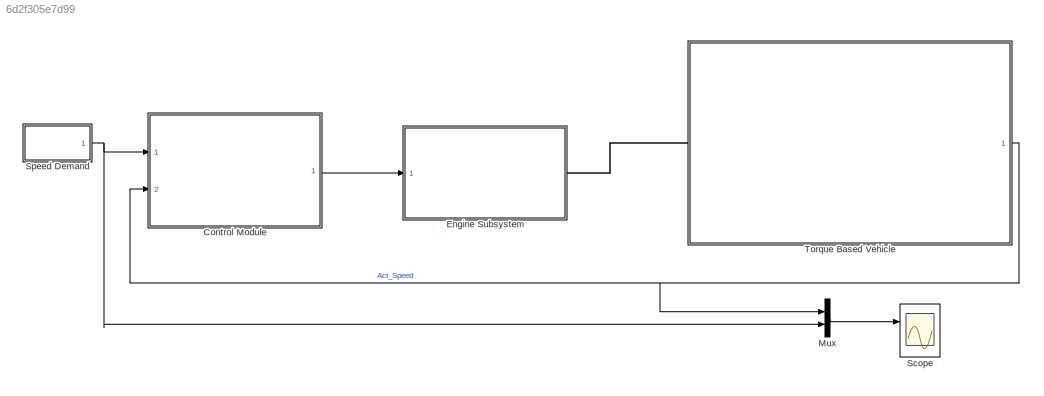
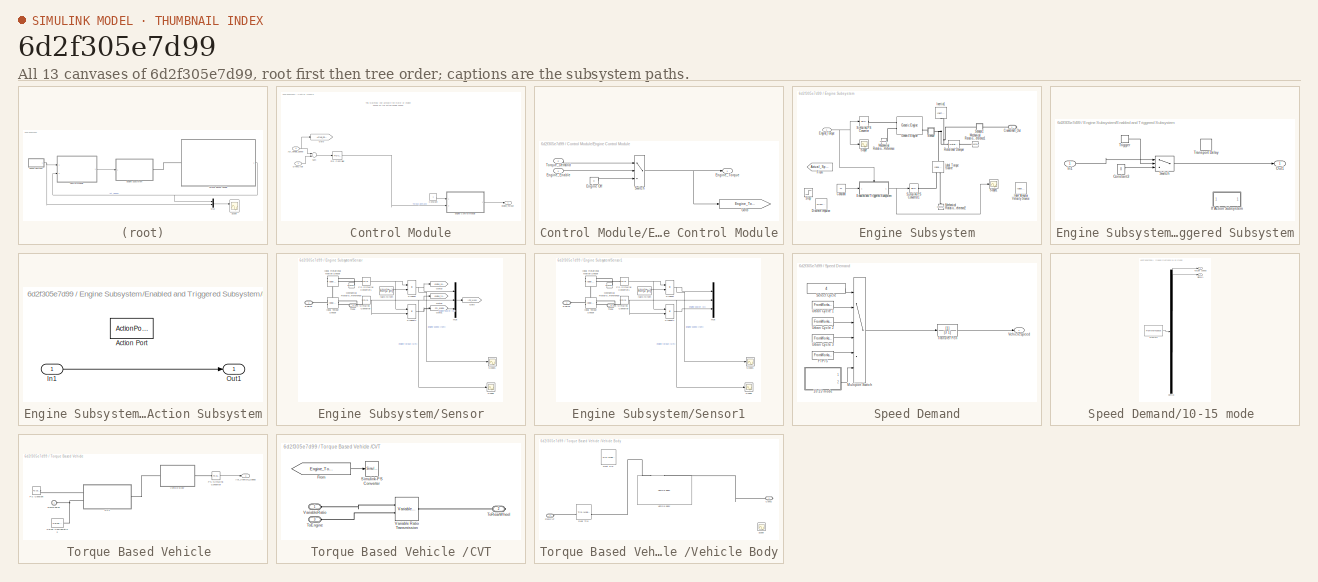
[diagram: thumbnail index - all 13 canvases of the model, root first then tree order]
MODEL slx_6d2f305e7d99
KIND model
BLOCK [SubSystem] Control Module
  FunctionWithSeparateData = off
  MaskHideContents = off
  MinAlgLoopOccurrences = off
  Opaque = off
  Ports = [2, 1]
  PropExecContextOutsideSubsystem = off
  RTWSystemCode = Auto
  RequestExecContextInheritance = off
BLOCK [Inport] Control Module/Act_Vehicle_Speed
  IconDisplay = Port number
  Port = 2
BLOCK [Constant] Control Module/Constant
BLOCK [Inport] Control Module/DriveCycle
  IconDisplay = Port number
BLOCK [SubSystem] Control Module/Engine Control Module
  FunctionWithSeparateData = off
  MaskHideContents = off
  MinAlgLoopOccurrences = off
  Opaque = off
  Ports = [2, 1]
  PropExecContextOutsideSubsystem = off
  RTWSystemCode = Auto
  RequestExecContextInheritance = off
BLOCK [Constant] Control Module/Engine Control Module/Engine Off
  Value = 0
BLOCK [Inport] Control Module/Engine Control Module/Engine_Enable
  IconDisplay = Port number
BLOCK [Outport] Control Module/Engine Control Module/Engine_Torque
  IconDisplay = Port number
BLOCK [Goto] Control Module/Engine Control Module/Goto
  GotoTag = Engine_Torque_Demand
  TagVisibility = global
BLOCK [Switch] Control Module/Engine Control Module/Switch
  InputSameDT = off
  SaturateOnIntegerOverflow = off
  Threshold = 0.5
BLOCK [Inport] Control Module/Engine Control Module/Torque_Demand
  IconDisplay = Port number
  Port = 2
BLOCK [Outport] Control Module/Engine_Torque
  IconDisplay = Port number
BLOCK [Goto] Control Module/Goto
  GotoTag = Actual_Speed
  TagVisibility = global
BLOCK [Reference] Control Module/PID Controller  REF=simulink/Continuous/PID Controller
  AntiWindupMode = none
  Controller = P
  D = 0
  DOutDataTypeStr = Inherit: Inherit via internal rule
  DOutMax = []
  DOutMin = []
  DParamDataTypeStr = Inherit: Inherit via internal rule
  DParamMax = []
  DParamMin = []
  ExternalReset = none
  FilterContinuousStateAttributes = ''
  FilterMethod = Forward Euler
  FilterOutDataTypeStr = Inherit: Inherit via internal rule
  FilterOutMax = []
  FilterOutMin = []
  FilterRTWStateStorageClass = Auto
  FilterStateMustResolveToSignalObject = off
  Form = Parallel
  I = 0
  IOutDataTypeStr = Inherit: Inherit via internal rule
  IOutMax = []
  IOutMin = []
  IParamDataTypeStr = Inherit: Inherit via internal rule
  IParamMax = []
  IParamMin = []
  IgnoreLimit = off
  InitialConditionForFilter = 0
  InitialConditionForIntegrator = 0
  InitialConditionSource = internal
  IntegratorContinuousStateAttributes = ''
  IntegratorMethod = Forward Euler
  IntegratorOutDataTypeStr = Inherit: Inherit via internal rule
  IntegratorOutMax = []
  IntegratorOutMin = []
  IntegratorRTWStateStorageClass = Auto
  IntegratorStateMustResolveToSignalObject = off
  Kb = 1
  KbOutDataTypeStr = Inherit: Inherit via internal rule
  KbOutMax = []
  KbOutMin = []
  KbParamDataTypeStr = Inherit: Inherit via internal rule
  KbParamMax = []
  KbParamMin = []
  Kt = 1
  KtOutDataTypeStr = Inherit: Inherit via internal rule
  KtOutMax = []
  KtOutMin = []
  KtParamDataTypeStr = Inherit: Inherit via internal rule
  KtParamMax = []
  KtParamMin = []
  LimitOutput = off
  LinearizeAsGain = on
  LockScale = off
  LowerSaturationLimit = -inf
  N = 0
  NOutDataTypeStr = Inherit: Inherit via internal rule
  NOutMax = []
  NOutMin = []
  NParamDataTypeStr = Inherit: Inherit via internal rule
  NParamMax = []
  NParamMin = []
  P = 100
  POutDataTypeStr = Inherit: Inherit via internal rule
  POutMax = []
  POutMin = []
  PParamDataTypeStr = Inherit: Inherit via internal rule
  PParamMax = []
  PParamMin = []
  Ports = [1, 1]
  RndMeth = Floor
  SampleTime = 1
  SaturateOnIntegerOverflow = off
  SaturationOutDataTypeStr = Inherit: Same as input
  SaturationOutMax = []
  SaturationOutMin = []
  SourceBlock = simulink/Continuous/PID Controller
  SourceType = PID 1dof
  SumAccumDataTypeStr = Inherit: Inherit via internal rule
  SumDAccumDataTypeStr = Inherit: Inherit via internal rule
  SumDOutDataTypeStr = Inherit: Inherit via internal rule
  SumDOutMax = []
  SumDOutMin = []
  SumI1AccumDataTypeStr = Inherit: Inherit via internal rule
  SumI1OutDataTypeStr = Inherit: Inherit via internal rule
  SumI1OutMax = []
  SumI1OutMin = []
  SumI2AccumDataTypeStr = Inherit: Inherit via internal rule
  SumI2OutDataTypeStr = Inherit: Inherit via internal rule
  SumI2OutMax = []
  SumI2OutMin = []
  SumI3AccumDataTypeStr = Inherit: Inherit via internal rule
  SumI3OutDataTypeStr = Inherit: Inherit via internal rule
  SumI3OutMax = []
  SumI3OutMin = []
  SumOutDataTypeStr = Inherit: Inherit via internal rule
  SumOutMax = []
  SumOutMin = []
  TimeDomain = Continuous-time
  TrackingMode = off
  UpperSaturationLimit = inf
  ZeroCross = on
BLOCK [Sum] Control Module/Sum
  InputSameDT = off
  Inputs = -+
  OutDataTypeStr = Inherit: Inherit via internal rule
  Ports = [2, 1]
  SaturateOnIntegerOverflow = off
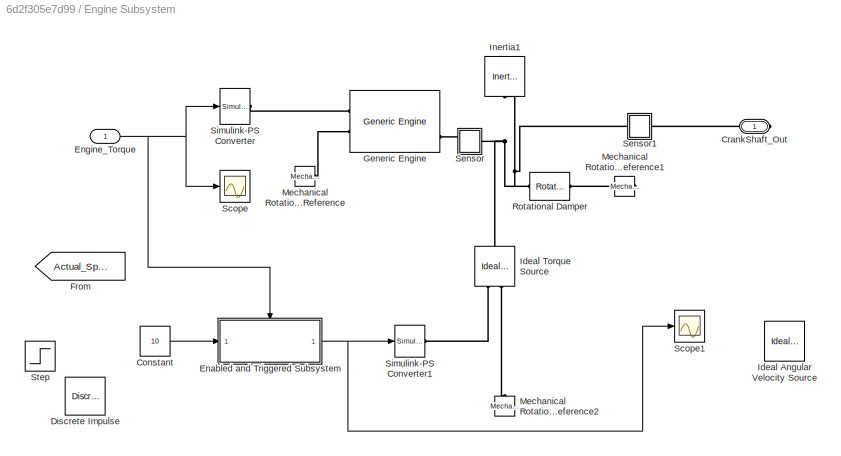
BLOCK [SubSystem] Engine Subsystem
  FunctionWithSeparateData = off
  MaskHideContents = off
  MinAlgLoopOccurrences = off
  Opaque = off
  Ports = [1, 0, 0, 0, 0, 0, 1]
  PropExecContextOutsideSubsystem = off
  RTWSystemCode = Auto
  RequestExecContextInheritance = off
BLOCK [Constant] Engine Subsystem/Constant
  Value = 10
BLOCK [PMIOPort] Engine Subsystem/CrankShaft_Out
  Port = 1
  Side = Right
BLOCK [Reference] Engine Subsystem/Discrete Impulse  REF=dspsrcs4/Discrete 
Impulse
  Delay = 0
  FrameSample = 1
  LastOutDataTypeStr = double
  OutDataTypeStr = double
  Ports = [0, 1]
  SampleTime = 1
  SourceBlock = dspsrcs4/Discrete \nImpulse
  SourceType = Discrete Impulse
  additionalParams = off
  allowOverrides = on
  dataType = double
  fracBitsMode = Best precision
  isSigned = on
  numFracBits = 15
  udDataType = sfix(16)
  wordLen = 16
BLOCK [SubSystem] Engine Subsystem/Enabled and Triggered Subsystem
  FunctionWithSeparateData = off
  MaskHideContents = off
  MinAlgLoopOccurrences = off
  Opaque = off
  Ports = [1, 1, 0, 1]
  PropExecContextOutsideSubsystem = off
  RTWSystemCode = Auto
  RequestExecContextInheritance = off
  TreatAsAtomicUnit = on
BLOCK [Constant] Engine Subsystem/Enabled and Triggered Subsystem/Constant3
  SampleTime = -1
  Value = 0
BLOCK [SubSystem] Engine Subsystem/Enabled and Triggered Subsystem/If Action Subsystem
  FunctionWithSeparateData = off
  MaskHideContents = off
  MinAlgLoopOccurrences = off
  Opaque = off
  Ports = [1, 1, 0, 0, 0, 0, 0, 1]
  PropExecContextOutsideSubsystem = off
  RTWSystemCode = Auto
  RequestExecContextInheritance = off
  TreatAsAtomicUnit = on
BLOCK [ActionPort] Engine Subsystem/Enabled and Triggered Subsystem/If Action Subsystem/Action Port
BLOCK [Inport] Engine Subsystem/Enabled and Triggered Subsystem/If Action Subsystem/In1
  IconDisplay = Port number
BLOCK [Outport] Engine Subsystem/Enabled and Triggered Subsystem/If Action Subsystem/Out1
  IconDisplay = Port number
BLOCK [Inport] Engine Subsystem/Enabled and Triggered Subsystem/In1
  IconDisplay = Port number
BLOCK [Outport] Engine Subsystem/Enabled and Triggered Subsystem/Out1
  IconDisplay = Port number
  InitialOutput = 0
BLOCK [Switch] Engine Subsystem/Enabled and Triggered Subsystem/Switch
  InputSameDT = off
  SaturateOnIntegerOverflow = off
BLOCK [TransportDelay] Engine Subsystem/Enabled and Triggered Subsystem/Transport Delay
  Commented = on
  DelayTime = 0.5
  Ports = [1, 1]
BLOCK [TriggerPort] Engine Subsystem/Enabled and Triggered Subsystem/Trigger
  PortDimensions = 1
  Ports = [0, 1]
  ShowOutputPort = on
  StatesWhenEnabling = reset
  TriggerType = either
BLOCK [Inport] Engine Subsystem/Engine_Torque
  IconDisplay = Port number
BLOCK [From] Engine Subsystem/From
  Commented = on
  GotoTag = Actual_Speed
  TagVisibility = global
BLOCK [Reference] Engine Subsystem/Generic Engine  REF=sdl_lib/Engines/Generic Engine
  ClassName = generic_engine
  ComponentPath = sdl.engines.generic_engine
  ComponentVariantNames = generic_engine
  ComponentVariants = sdl.engines.generic_engine
  LocalVarLogging = []
  P_max = 8300
  P_max_unit = W
  Ports = [0, 0, 0, 0, 0, 2, 3]
  SchemaVersion = 1
  SourceBlock = sdl_lib/Engines/Generic Engine
  SourceFile = sdl.engines.generic_engine
  SourceType = Generic Engine
  T0 = 0
  T0_unit = 1
  bmep_tab = [ 0 250 500 625 750 1000 1.15e+3 1.25e+3 ]
  bmep_tab_unit = kPa
  bsfc_tab = [ 410 380 300 280 270 290 320 380; 410 370 290 270 260 270 285 320; 415 380 290 275 265 270 270 300; 420 390 310 290 285 280 280 285; 430 410 340 320 310 300 310 320; 450 430 370 340 330 330 350 380 ]
  bsfc_tab_unit = g/hr/kW
  displaced_volume = 400
  displaced_volume_unit = cm^3
  engine_type = 1
  engine_type_unit = 1
  fc_interp_method = 1
  fc_interp_method_unit = 1
  fc_model = 1
  fc_model_unit = 1
  fc_per_rev = 25
  fc_per_rev_unit = mg/rev
  fc_tab = [ 0.5 0.9 1.4 1.6 1.9 2.7 3.4 4.4; 1 1.7 2.7 3.1 3.6 5 6 7.4; 1.4 2.7 4 4.8 5.6 7.5 8.5 10.5; 2 3.6 5.8 6.7 8 10.4 11.7 13.3; 2.5 4.8 7.9 9.4 10.8 14 16.2 18.6; 3.1 6 10.3 11.9 13.8 18.4 22 26.5 ]
  fc_tab_unit = g/s
  fc_trq_tab = [ 0 80 160 200 240 320 360 400 ]
  fc_trq_tab_unit = N*m
  fc_w_tab = [ 1000 2e+3 3e+3 4e+3 5e+3 6e+3 ]
  fc_w_tab_unit = rpm
  idle_speed = 0
  idle_speed_reference = 800
  idle_speed_reference_unit = rpm
  idle_speed_unit = 1
  idle_w_thr = 1
  idle_w_thr_unit = rpm
  inertia = 1
  inertia_unit = kg*m^2
  initial_velocity = 800
  initial_velocity_unit = rpm
  interp_method = 1
  interp_method_unit = 1
  model_inertia = 0
  model_inertia_unit = 1
  model_parameterization = 1
  model_parameterization_unit = 1
  model_time_constant = 0
  model_time_constant_unit = 1
  pwr_tab = [ 2e+4 4e+4 7.8e+4 1.2e+5 1.45e+5 1.48e+5 1.25e+5 6e+4 ]
  pwr_tab_unit = W
  rev_per_cycle = 2
  rev_per_cycle_unit = 1
  tau_controller = 1
  tau_controller_unit = s
  time_constant = 0.2
  time_constant_unit = s
  trq_tab = [ 380 380 380 380 350 280 200 80 ]
  trq_tab_unit = N*m
  w_P_max = 8500
  w_P_max_unit = rpm
  w_max = 9000
  w_max_unit = rpm
  w_min = 500
  w_min_unit = rpm
  w_tab = [ 500 1000 2e+3 3e+3 4e+3 5e+3 6e+3 7e+3 ]
  w_tab_unit = rpm
  w_thr = 100
  w_thr_unit = rpm
BLOCK [Reference] Engine Subsystem/Ideal Angular Velocity Source  REF=fl_lib/Mechanical/Mechanical Sources/Ideal Angular
Velocity Source
  ClassName = angular_velocity
  ComponentPath = foundation.mechanical.sources.angular_velocity
  ComponentVariantNames = angular_velocity
  ComponentVariants = foundation.mechanical.sources.angular_velocity
  LocalVarDescs = |w|t
  LocalVarLogging = [0 0]
  LocalVarNames = |w|t
  Ports = [0, 0, 0, 0, 0, 1, 2]
  SchemaVersion = 1
  SourceBlock = fl_lib/Mechanical/Mechanical Sources/Ideal Angular\nVelocity Source
  SourceFile = foundation.mechanical.sources.angular_velocity
  SourceType = Ideal Angular\nVelocity Source
  t_Log = off
  w_Log = off
BLOCK [Reference] Engine Subsystem/Ideal Torque Source  REF=fl_lib/Mechanical/Mechanical Sources/Ideal Torque Source
  ClassName = torque
  ComponentPath = foundation.mechanical.sources.torque
  ComponentVariantNames = torque
  ComponentVariants = foundation.mechanical.sources.torque
  LocalVarDescs = |w|t
  LocalVarLogging = [0 0]
  LocalVarNames = |w|t
  Ports = [0, 0, 0, 0, 0, 1, 2]
  SchemaVersion = 1
  SourceBlock = fl_lib/Mechanical/Mechanical Sources/Ideal Torque Source
  SourceFile = foundation.mechanical.sources.torque
  SourceType = Ideal Torque Source
  t_Log = off
  w_Log = off
BLOCK [Reference] Engine Subsystem/Inertia1  REF=fl_lib/Mechanical/Rotational Elements/Inertia
  ClassName = inertia
  ComponentPath = foundation.mechanical.rotational.inertia
  ComponentVariantNames = inertia
  ComponentVariants = foundation.mechanical.rotational.inertia
  LocalVarDescs = |t
  LocalVarLogging = 0
  LocalVarNames = |t
  Ports = [0, 0, 0, 0, 0, 1]
  SchemaVersion = 1
  SourceBlock = fl_lib/Mechanical/Rotational Elements/Inertia
  SourceFile = foundation.mechanical.rotational.inertia
  SourceType = Inertia
  inertia = HEV_Param.ICE.Shaft_Inertia
  inertia_unit = kg*m^2
  initial_velocity = 800
  initial_velocity_unit = rpm
  t_Log = off
BLOCK [Reference] Engine Subsystem/Mechanical Rotational Reference  REF=fl_lib/Mechanical/Rotational Elements/Mechanical
Rotational Reference
  ClassName = reference
  ComponentPath = foundation.mechanical.rotational.reference
  ComponentVariantNames = reference
  ComponentVariants = foundation.mechanical.rotational.reference
  LocalVarDescs = |t
  LocalVarLogging = 0
  LocalVarNames = |t
  Ports = [0, 0, 0, 0, 0, 1]
  SchemaVersion = 1
  SourceBlock = fl_lib/Mechanical/Rotational Elements/Mechanical\nRotational Reference
  SourceFile = foundation.mechanical.rotational.reference
  SourceType = Mechanical\nRotational Reference
  t_Log = off
BLOCK [Reference] Engine Subsystem/Mechanical Rotational Reference1  REF=fl_lib/Mechanical/Rotational Elements/Mechanical
Rotational Reference
  ClassName = reference
  ComponentPath = foundation.mechanical.rotational.reference
  ComponentVariantNames = reference
  ComponentVariants = foundation.mechanical.rotational.reference
  LocalVarDescs = |t
  LocalVarLogging = 0
  LocalVarNames = |t
  Ports = [0, 0, 0, 0, 0, 1]
  SchemaVersion = 1
  SourceBlock = fl_lib/Mechanical/Rotational Elements/Mechanical\nRotational Reference
  SourceFile = foundation.mechanical.rotational.reference
  SourceType = Mechanical\nRotational Reference
  t_Log = off
BLOCK [Reference] Engine Subsystem/Mechanical Rotational Reference2  REF=fl_lib/Mechanical/Rotational Elements/Mechanical
Rotational Reference
  ClassName = reference
  ComponentPath = foundation.mechanical.rotational.reference
  ComponentVariantNames = reference
  ComponentVariants = foundation.mechanical.rotational.reference
  LocalVarDescs = |t
  LocalVarLogging = 0
  LocalVarNames = |t
  Ports = [0, 0, 0, 0, 0, 1]
  SchemaVersion = 1
  SourceBlock = fl_lib/Mechanical/Rotational Elements/Mechanical\nRotational Reference
  SourceFile = foundation.mechanical.rotational.reference
  SourceType = Mechanical\nRotational Reference
  t_Log = off
BLOCK [Reference] Engine Subsystem/Rotational Damper  REF=fl_lib/Mechanical/Rotational Elements/Rotational Damper
  ClassName = damper
  ComponentPath = foundation.mechanical.rotational.damper
  ComponentVariantNames = damper
  ComponentVariants = foundation.mechanical.rotational.damper
  D = HEV_Param.ICE.Friction
  D_unit = N*m/(rad/s)
  LocalVarDescs = |t|w
  LocalVarLogging = [0 0]
  LocalVarNames = |t|w
  Ports = [0, 0, 0, 0, 0, 1, 1]
  SchemaVersion = 1
  SourceBlock = fl_lib/Mechanical/Rotational Elements/Rotational Damper
  SourceFile = foundation.mechanical.rotational.damper
  SourceType = Rotational Damper
  t_Log = off
  w_Log = off
BLOCK [Scope] Engine Subsystem/Scope
  DataFormat = StructureWithTime
  Floating = off
  NumInputPorts = 1
  Ports = [1]
  SampleTime = 0
  SaveName = ScopeData7
  ShowLegends = off
  YMax = 1.05
  YMin = -0.05
BLOCK [Scope] Engine Subsystem/Scope1
  DataFormat = StructureWithTime
  Floating = off
  NumInputPorts = 1
  Ports = [1]
  SampleTime = 0
  SaveName = ScopeData2
  ShowLegends = off
  YMax = 1.05
  YMin = -0.05
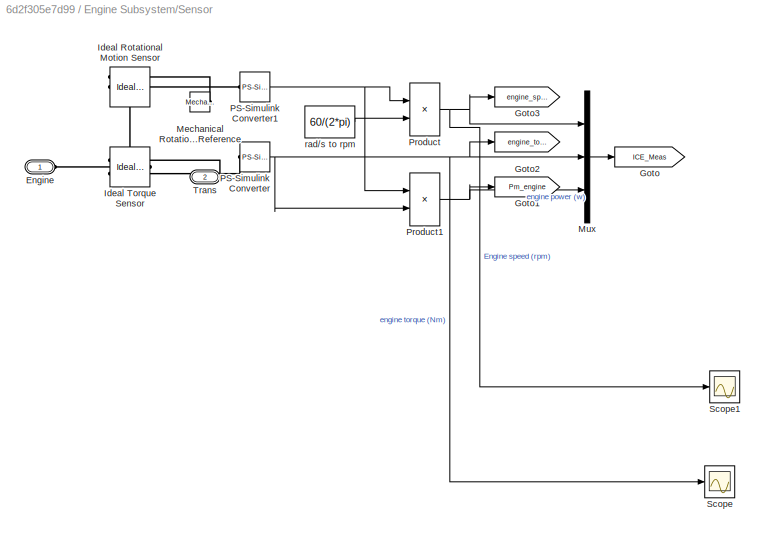
BLOCK [SubSystem] Engine Subsystem/Sensor
  FunctionWithSeparateData = off
  MaskHideContents = off
  MinAlgLoopOccurrences = off
  Opaque = off
  Ports = [0, 0, 0, 0, 0, 1, 1]
  PropExecContextOutsideSubsystem = off
  RTWSystemCode = Auto
  RequestExecContextInheritance = off
BLOCK [PMIOPort] Engine Subsystem/Sensor/Engine
  Port = 1
  Side = Left
BLOCK [Goto] Engine Subsystem/Sensor/Goto
  GotoTag = ICE_Meas
  TagVisibility = global
BLOCK [Goto] Engine Subsystem/Sensor/Goto1
  GotoTag = Pm_engine
  TagVisibility = global
BLOCK [Goto] Engine Subsystem/Sensor/Goto2
  GotoTag = engine_torque
  TagVisibility = global
BLOCK [Goto] Engine Subsystem/Sensor/Goto3
  GotoTag = engine_speed
  TagVisibility = global
BLOCK [Reference] Engine Subsystem/Sensor/Ideal Rotational Motion Sensor  REF=fl_lib/Mechanical/Mechanical Sensors/Ideal Rotational
Motion Sensor
  ClassName = angular_velocity
  ComponentPath = foundation.mechanical.sensors.angular_velocity
  ComponentVariantNames = angular_velocity
  ComponentVariants = foundation.mechanical.sensors.angular_velocity
  LocalVarDescs = |w|t|phi
  LocalVarLogging = [0 0 0]
  LocalVarNames = |w|t|phi
  Ports = [0, 0, 0, 0, 0, 1, 3]
  SchemaVersion = 1
  SourceBlock = fl_lib/Mechanical/Mechanical Sensors/Ideal Rotational\nMotion Sensor
  SourceFile = foundation.mechanical.sensors.angular_velocity
  SourceType = Ideal Rotational\nMotion Sensor
  offset = 0
  offset_unit = rad
  phi_Log = off
  t_Log = off
  w_Log = off
BLOCK [Reference] Engine Subsystem/Sensor/Ideal Torque Sensor  REF=fl_lib/Mechanical/Mechanical Sensors/Ideal Torque Sensor
  ClassName = torque
  ComponentPath = foundation.mechanical.sensors.torque
  ComponentVariantNames = torque
  ComponentVariants = foundation.mechanical.sensors.torque
  LocalVarDescs = |w|t
  LocalVarLogging = [0 0]
  LocalVarNames = |w|t
  Ports = [0, 0, 0, 0, 0, 1, 2]
  SchemaVersion = 1
  SourceBlock = fl_lib/Mechanical/Mechanical Sensors/Ideal Torque Sensor
  SourceFile = foundation.mechanical.sensors.torque
  SourceType = Ideal Torque Sensor
  t_Log = off
  w_Log = off
BLOCK [Reference] Engine Subsystem/Sensor/Mechanical Rotational Reference  REF=fl_lib/Mechanical/Rotational Elements/Mechanical
Rotational Reference
  ClassName = reference
  ComponentPath = foundation.mechanical.rotational.reference
  ComponentVariantNames = reference
  ComponentVariants = foundation.mechanical.rotational.reference
  LocalVarDescs = |t
  LocalVarLogging = 0
  LocalVarNames = |t
  Ports = [0, 0, 0, 0, 0, 1]
  SchemaVersion = 1
  SourceBlock = fl_lib/Mechanical/Rotational Elements/Mechanical\nRotational Reference
  SourceFile = foundation.mechanical.rotational.reference
  SourceType = Mechanical\nRotational Reference
  t_Log = off
BLOCK [Mux] Engine Subsystem/Sensor/Mux
  DisplayOption = bar
  Inputs = 3
  Ports = [3, 1]
BLOCK [Reference] Engine Subsystem/Sensor/PS-Simulink Converter  REF=nesl_utility/PS-Simulink
Converter
  AffineConversion = off
  Frequencies = []
  LeftPortType = input
  PhysicalDomain = network_engine_domain
  Ports = [0, 1, 0, 0, 0, 1]
  PseudoPeriodic = off
  RightPortType = output
  SourceBlock = nesl_utility/PS-Simulink\nConverter
  SourceType = PS-Simulink\nConverter
  SubClassName = ps_output
  Unit = N*m
BLOCK [Reference] Engine Subsystem/Sensor/PS-Simulink Converter1  REF=nesl_utility/PS-Simulink
Converter
  AffineConversion = off
  Frequencies = []
  LeftPortType = input
  PhysicalDomain = network_engine_domain
  Ports = [0, 1, 0, 0, 0, 1]
  PseudoPeriodic = off
  RightPortType = output
  SourceBlock = nesl_utility/PS-Simulink\nConverter
  SourceType = PS-Simulink\nConverter
  SubClassName = ps_output
  Unit = rad/s
BLOCK [Product] Engine Subsystem/Sensor/Product
  InputSameDT = off
  OutDataTypeStr = Inherit: Inherit via internal rule
  Ports = [2, 1]
  SaturateOnIntegerOverflow = off
BLOCK [Product] Engine Subsystem/Sensor/Product1
  InputSameDT = off
  OutDataTypeStr = Inherit: Inherit via internal rule
  Ports = [2, 1]
  SaturateOnIntegerOverflow = off
BLOCK [Scope] Engine Subsystem/Sensor/Scope
  DataFormat = StructureWithTime
  Floating = off
  NumInputPorts = 1
  Ports = [1]
  SampleTime = 0
  SaveName = ScopeData3
  ShowLegends = off
  YMax = 0.0175
  YMin = -0.0175
BLOCK [Scope] Engine Subsystem/Sensor/Scope1
  DataFormat = StructureWithTime
  Floating = off
  NumInputPorts = 1
  Ports = [1]
  SampleTime = 0
  SaveName = ScopeData6
  ShowLegends = off
  YMax = 4.5e-13
  YMin = -2.5e-14
BLOCK [PMIOPort] Engine Subsystem/Sensor/Trans
  Port = 2
  Side = Right
BLOCK [Constant] Engine Subsystem/Sensor/rad//s to rpm
  Value = 60/(2*pi)
BLOCK [SubSystem] Engine Subsystem/Sensor1
  FunctionWithSeparateData = off
  MaskHideContents = off
  MinAlgLoopOccurrences = off
  Opaque = off
  Ports = [0, 0, 0, 0, 0, 1, 1]
  PropExecContextOutsideSubsystem = off
  RTWSystemCode = Auto
  RequestExecContextInheritance = off
BLOCK [PMIOPort] Engine Subsystem/Sensor1/Engine
  Port = 1
  Side = Left
BLOCK [Reference] Engine Subsystem/Sensor1/Ideal Rotational Motion Sensor  REF=fl_lib/Mechanical/Mechanical Sensors/Ideal Rotational
Motion Sensor
  ClassName = angular_velocity
  ComponentPath = foundation.mechanical.sensors.angular_velocity
  ComponentVariantNames = angular_velocity
  ComponentVariants = foundation.mechanical.sensors.angular_velocity
  LocalVarDescs = |w|t|phi
  LocalVarLogging = [0 0 0]
  LocalVarNames = |w|t|phi
  Ports = [0, 0, 0, 0, 0, 1, 3]
  SchemaVersion = 1
  SourceBlock = fl_lib/Mechanical/Mechanical Sensors/Ideal Rotational\nMotion Sensor
  SourceFile = foundation.mechanical.sensors.angular_velocity
  SourceType = Ideal Rotational\nMotion Sensor
  offset = 0
  offset_unit = rad
  phi_Log = off
  t_Log = off
  w_Log = off
BLOCK [Reference] Engine Subsystem/Sensor1/Ideal Torque Sensor  REF=fl_lib/Mechanical/Mechanical Sensors/Ideal Torque Sensor
  ClassName = torque
  ComponentPath = foundation.mechanical.sensors.torque
  ComponentVariantNames = torque
  ComponentVariants = foundation.mechanical.sensors.torque
  LocalVarDescs = |w|t
  LocalVarLogging = [0 0]
  LocalVarNames = |w|t
  Ports = [0, 0, 0, 0, 0, 1, 2]
  SchemaVersion = 1
  SourceBlock = fl_lib/Mechanical/Mechanical Sensors/Ideal Torque Sensor
  SourceFile = foundation.mechanical.sensors.torque
  SourceType = Ideal Torque Sensor
  t_Log = off
  w_Log = off
BLOCK [Reference] Engine Subsystem/Sensor1/Mechanical Rotational Reference  REF=fl_lib/Mechanical/Rotational Elements/Mechanical
Rotational Reference
  ClassName = reference
  ComponentPath = foundation.mechanical.rotational.reference
  ComponentVariantNames = reference
  ComponentVariants = foundation.mechanical.rotational.reference
  LocalVarDescs = |t
  LocalVarLogging = 0
  LocalVarNames = |t
  Ports = [0, 0, 0, 0, 0, 1]
  SchemaVersion = 1
  SourceBlock = fl_lib/Mechanical/Rotational Elements/Mechanical\nRotational Reference
  SourceFile = foundation.mechanical.rotational.reference
  SourceType = Mechanical\nRotational Reference
  t_Log = off
BLOCK [Mux] Engine Subsystem/Sensor1/Mux
  DisplayOption = bar
  Inputs = 3
  Ports = [3, 1]
BLOCK [Reference] Engine Subsystem/Sensor1/PS-Simulink Converter  REF=nesl_utility/PS-Simulink
Converter
  AffineConversion = off
  Frequencies = []
  LeftPortType = input
  PhysicalDomain = network_engine_domain
  Ports = [0, 1, 0, 0, 0, 1]
  PseudoPeriodic = off
  RightPortType = output
  SourceBlock = nesl_utility/PS-Simulink\nConverter
  SourceType = PS-Simulink\nConverter
  SubClassName = ps_output
  Unit = N*m
BLOCK [Reference] Engine Subsystem/Sensor1/PS-Simulink Converter1  REF=nesl_utility/PS-Simulink
Converter
  AffineConversion = off
  Frequencies = []
  LeftPortType = input
  PhysicalDomain = network_engine_domain
  Ports = [0, 1, 0, 0, 0, 1]
  PseudoPeriodic = off
  RightPortType = output
  SourceBlock = nesl_utility/PS-Simulink\nConverter
  SourceType = PS-Simulink\nConverter
  SubClassName = ps_output
  Unit = rad/s
BLOCK [Product] Engine Subsystem/Sensor1/Product
  InputSameDT = off
  OutDataTypeStr = Inherit: Inherit via internal rule
  Ports = [2, 1]
  SaturateOnIntegerOverflow = off
BLOCK [Product] Engine Subsystem/Sensor1/Product1
  InputSameDT = off
  OutDataTypeStr = Inherit: Inherit via internal rule
  Ports = [2, 1]
  SaturateOnIntegerOverflow = off
BLOCK [Scope] Engine Subsystem/Sensor1/Scope
  DataFormat = StructureWithTime
  Floating = off
  NumInputPorts = 1
  Ports = [1]
  SampleTime = 0
  SaveName = ScopeData3
  ShowLegends = off
  YMax = 0.0175
  YMin = -0.0175
BLOCK [Scope] Engine Subsystem/Sensor1/Scope1
  DataFormat = StructureWithTime
  Floating = off
  NumInputPorts = 1
  Ports = [1]
  SampleTime = 0
  SaveName = ScopeData6
  ShowLegends = off
  YMax = 4.5e-13
  YMin = -2.5e-14
BLOCK [PMIOPort] Engine Subsystem/Sensor1/Trans
  Port = 2
  Side = Right
BLOCK [Constant] Engine Subsystem/Sensor1/rad//s to rpm
  Value = 60/(2*pi)
BLOCK [Reference] Engine Subsystem/Simulink-PS Converter  REF=nesl_utility/Simulink-PS
Converter
  AffineConversion = off
  Frequencies = []
  InputFilterTimeConstant = 0.001
  InputFiltering = off
  LeftPortType = input
  NoiseDistribution = none
  NoiseParameters = []
  PhysicalDomain = network_engine_domain
  Ports = [1, 0, 0, 0, 0, 0, 1]
  PseudoPeriodic = off
  RightPortType = output
  SimscapeFilterOrder = 1
  SourceBlock = nesl_utility/Simulink-PS\nConverter
  SourceType = Simulink-PS\nConverter
  SubClassName = ps_input
  UdotUserProvided = 1
  Unit = N*m
BLOCK [Reference] Engine Subsystem/Simulink-PS Converter1  REF=nesl_utility/Simulink-PS
Converter
  AffineConversion = off
  Frequencies = []
  InputFilterTimeConstant = .001
  InputFiltering = off
  LeftPortType = input
  NoiseDistribution = none
  NoiseParameters = []
  PhysicalDomain = network_engine_domain
  Ports = [1, 0, 0, 0, 0, 0, 1]
  PseudoPeriodic = off
  RightPortType = output
  SimscapeFilterOrder = 1
  SourceBlock = nesl_utility/Simulink-PS\nConverter
  SourceType = Simulink-PS\nConverter
  SubClassName = ps_input
  UdotUserProvided = 1
  Unit = N*m
BLOCK [Step] Engine Subsystem/Step
  SampleTime = 0
BLOCK [Mux] Mux
  DisplayOption = bar
  Inputs = 2
  Ports = [2, 1]
BLOCK [Scope] Scope
  DataFormat = StructureWithTime
  Floating = off
  LimitDataPoints = off
  NumInputPorts = 2
  Ports = [2]
  SampleTime = 0
  ShowLegends = off
  YMax = 50~50
  YMin = -2.5~0
BLOCK [SubSystem] Speed Demand
  FunctionWithSeparateData = off
  MaskHideContents = off
  MinAlgLoopOccurrences = off
  Opaque = off
  Ports = [0, 1]
  PropExecContextOutsideSubsystem = off
  RTWSystemCode = Auto
  RequestExecContextInheritance = off
BLOCK [SubSystem] Speed Demand/10-15 mode 
  ClipboardFcn = sigbuilder_block('clipboard');
  CloseFcn = sigbuilder_block('close');
  ContinueFcn = sigbuilder_block('continue')
  CopyFcn = sigbuilder_block('copy');
  DeleteFcn = sigbuilder_block('delete');
  FunctionWithSeparateData = off
  LoadFcn = sigbuilder_block('load');
  MaskHideContents = on
  MinAlgLoopOccurrences = off
  ModelCloseFcn = sigbuilder_block('modelClose');
  NameChangeFcn = sigbuilder_block('namechange');
  Opaque = off
  OpenFcn = sigbuilder_block('open',[5.58621 35.3793 980.69 465.517 ]);
  PauseFcn = sigbuilder_block('pause')
  Ports = [0, 2]
  PreSaveFcn = sigbuilder_block('preSave');
  PropExecContextOutsideSubsystem = off
  RTWSystemCode = Auto
  RequestExecContextInheritance = off
  StartFcn = sigbuilder_block('start');
  StopFcn = sigbuilder_block('stop');
  Tag = STV Subsys
BLOCK [Demux] Speed Demand/10-15 mode /Demux
  Outputs = 2
  Ports = [1, 2]
  Tag = STV Demux
BLOCK [FromWorkspace] Speed Demand/10-15 mode /FromWs
  SampleTime = 0
  Tag = STV FromWs
  VariableName = tuvar
  ZeroCross = on
BLOCK [Outport] Speed Demand/10-15 mode /Signal 1
  IconDisplay = Port number
  Port = 2
  Tag = STV Outport
BLOCK [Outport] Speed Demand/10-15 mode /Target speed
  IconDisplay = Port number
  Tag = STV Outport
BLOCK [FromWorkspace] Speed Demand/FTP75
  SampleTime = 0
  VariableName = [UrbanCycle4.time Vehicle_MaxSpeed_kph/max(UrbanCycle4.SpdKph)*UrbanCycle4.SpdKph]
  ZeroCross = on
BLOCK [MultiPortSwitch] Speed Demand/Multiport Switch
  InputSameDT = off
  Inputs = 5
  Ports = [6, 1]
  SaturateOnIntegerOverflow = off
BLOCK [Constant] Speed Demand/Select Cycle
  Value = 4
BLOCK [TransferFcn] Speed Demand/Transfer Fcn
  Denominator = [3 1]
BLOCK [FromWorkspace] Speed Demand/Urban Cycle 1
  SampleTime = 0
  VariableName = [UrbanCycle1.time UrbanCycle1.SpdKph]
  ZeroCross = on
BLOCK [FromWorkspace] Speed Demand/Urban Cycle 2
  SampleTime = 0
  VariableName = [UrbanCycle2.time UrbanCycle2.SpdKph]
  ZeroCross = on
BLOCK [FromWorkspace] Speed Demand/Urban Cycle 3
  SampleTime = 0
  VariableName = [UrbanCycle3.time UrbanCycle3.SpdKph]
  ZeroCross = on
BLOCK [Outport] Speed Demand/VehicleSpeed
  IconDisplay = Port number
BLOCK [SubSystem] Torque Based Vehicle 
  FunctionWithSeparateData = off
  MaskHideContents = off
  MinAlgLoopOccurrences = off
  Opaque = off
  Ports = [0, 1, 0, 0, 0, 1]
  PropExecContextOutsideSubsystem = off
  RTWSystemCode = Auto
  RequestExecContextInheritance = off
BLOCK [Outport] Torque Based Vehicle /Act_Vehicle_Speed
  IconDisplay = Port number
BLOCK [SubSystem] Torque Based Vehicle /CVT
  FunctionWithSeparateData = off
  MaskHideContents = off
  MinAlgLoopOccurrences = off
  Opaque = off
  Ports = [0, 0, 0, 0, 0, 2, 1]
  PropExecContextOutsideSubsystem = off
  RTWSystemCode = Auto
  RequestExecContextInheritance = off
BLOCK [From] Torque Based Vehicle /CVT/From
  Commented = on
  GotoTag = Engine_Torque_Demand
  TagVisibility = global
BLOCK [Reference] Torque Based Vehicle /CVT/Simulink-PS Converter  REF=nesl_utility/Simulink-PS
Converter
  AffineConversion = off
  Commented = on
  Frequencies = []
  InputFilterTimeConstant = 0.001
  InputFiltering = off
  LeftPortType = input
  NoiseDistribution = none
  NoiseParameters = []
  PhysicalDomain = network_engine_domain
  Ports = [1, 0, 0, 0, 0, 0, 1]
  PseudoPeriodic = off
  RightPortType = output
  SimscapeFilterOrder = 1
  SourceBlock = nesl_utility/Simulink-PS\nConverter
  SourceType = Simulink-PS\nConverter
  SubClassName = ps_input
  UdotUserProvided = 1
  Unit = 1
BLOCK [PMIOPort] Torque Based Vehicle /CVT/ToEngine
  Port = 3
  Side = Left
BLOCK [PMIOPort] Torque Based Vehicle /CVT/ToRearWheel
  Port = 2
  Side = Right
BLOCK [Reference] Torque Based Vehicle /CVT/Variable Ratio Transmission  REF=sdl_lib/Couplings & Drives/Variable Ratio
Transmission
  ClassName = variable_ratio_transmission
  ComponentPath = sdl.couplings.variable_ratio_transmission
  ComponentVariantNames = variable_ratio_transmission
  ComponentVariants = sdl.couplings.variable_ratio_transmission
  LocalVarLogging = []
  Ports = [0, 0, 0, 0, 0, 2, 1]
  SchemaVersion = 1
  SourceBlock = sdl_lib/Couplings & Drives/Variable Ratio\nTransmission
  SourceFile = sdl.couplings.variable_ratio_transmission
  SourceType = Variable Ratio\nTransmission
  efficiency = 0.8
  efficiency_unit = 1
  initial_torque = 0
  initial_torque_unit = N*m
  kp = 3e+5
  kp_unit = N*m/rad
  kv = 0.05
  kv_unit = N*m/(rad/s)
  losses_model = 1
  losses_model_unit = 1
  mu_visc = [ 0 0 ]
  mu_visc_unit = N*m/(rad/s)
  rotation_direction = 1
  rotation_direction_unit = 1
  w_thr = 0.01
  w_thr_unit = rad/s
BLOCK [PMIOPort] Torque Based Vehicle /CVT/VariableRatio
  Port = 1
  Side = Left
BLOCK [PMIOPort] Torque Based Vehicle /FromEngine
  Port = 1
  Side = Left
BLOCK [Reference] Torque Based Vehicle /PS Constant  REF=fl_lib/Physical Signals/Sources/PS Constant
  ClassName = constant
  ComponentPath = foundation.physical_signal.sources.constant
  ComponentVariantNames = constant
  ComponentVariants = foundation.physical_signal.sources.constant
  LocalVarLogging = []
  Ports = [0, 0, 0, 0, 0, 0, 1]
  SchemaVersion = 1
  SourceBlock = fl_lib/Physical Signals/Sources/PS Constant
  SourceFile = foundation.physical_signal.sources.constant
  SourceType = PS Constant
  constant = 10
  constant_unit = 1
BLOCK [Reference] Torque Based Vehicle /PS-Simulink Converter  REF=nesl_utility/PS-Simulink
Converter
  AffineConversion = off
  Frequencies = []
  LeftPortType = input
  PhysicalDomain = network_engine_domain
  Ports = [0, 1, 0, 0, 0, 1]
  PseudoPeriodic = off
  RightPortType = output
  SourceBlock = nesl_utility/PS-Simulink\nConverter
  SourceType = PS-Simulink\nConverter
  SubClassName = ps_output
  Unit = mph
BLOCK [Reference] Torque Based Vehicle /Solver Configuration  REF=nesl_utility/Solver
Configuration
  Accelerate = off
  DelaysMemoryBudget = 1024
  DoDC = off
  DoFixedCost = off
  EnableSwitchedLinearOptims = on
  FrequencyDomain = off
  Harmonics = []
  LeftPortType = input
  LinearAlgebra = Sparse
  LocalSolverChoice = NE_BACKWARD_EULER_ADVANCER
  LocalSolverSampleTime = 0.2
  MaxModeIter = 2
  MaxNonlinIter = 3
  PhysicalDomain = network_engine_domain
  Ports = [0, 0, 0, 0, 0, 0, 1]
  Profile = off
  ResidualTolerance = 1e-09
  RightPortType = generic
  SimulateNoise = off
  SourceBlock = nesl_utility/Solver\nConfiguration
  SourceType = Solver\nConfiguration
  SubClassName = solver
  Tones = []
  UseCCode = off
  UseLocalSampling = off
  UseLocalSolver = off
  UseNewInitialization = off
BLOCK [SubSystem] Torque Based Vehicle /Vehicle Body
  FunctionWithSeparateData = off
  MaskHideContents = off
  MinAlgLoopOccurrences = off
  Opaque = off
  Ports = [0, 0, 0, 0, 0, 1, 1]
  PropExecContextOutsideSubsystem = off
  RTWSystemCode = Auto
  RequestExecContextInheritance = off
BLOCK [PMIOPort] Torque Based Vehicle /Vehicle Body/Conn2
  Port = 1
  Side = Right
BLOCK [PMIOPort] Torque Based Vehicle /Vehicle Body/FromCVT
  Port = 2
  Side = Left
BLOCK [Reference] Torque Based Vehicle /Vehicle Body/Front Tire   REF=sdl_lib/Tires & Vehicles/Tire (Magic Formula)
  B_m = 10
  B_m_unit = 1
  C_m = 1.9
  C_m_unit = 1
  ClassName = tire_magic
  Commented = on
  ComponentPath = sdl.tires.tire_magic
  ComponentVariantNames = tire_magic
  ComponentVariants = sdl.tires.tire_magic
  D_m = 1
  D_m_unit = 1
  E_m = 0.97
  E_m_unit = 1
  F_x1 = 3.5e+3
  F_x1_unit = N
  F_z1 = 3e+3
  F_z1_unit = N
  LocalVarLogging = []
  Ports = [0, 0, 0, 0, 0, 2, 2]
  SchemaVersion = 1
  SourceBlock = sdl_lib/Tires & Vehicles/Tire (Magic Formula)
  SourceFile = sdl.tires.tire_magic
  SourceType = Tire (Magic Formula)
  alpha = -0.003
  alpha_unit = 1
  beta = 0.97
  beta_unit = 1
  coeff = 0.015
  coeff_a = 84e-4
  coeff_a_unit = 1
  coeff_b = 6.2e-4
  coeff_b_unit = s/m
  coeff_c = 1.6e-4
  coeff_c_unit = s^2/m^2
  coeff_unit = 1
  damping = 1000
  damping_unit = N/(m/s)
  fz0 = 4e+3
  fz0_unit = N
  inertia = 1
  inertia_unit = kg*m^2
  initial_velocity = 0
  initial_velocity_unit = rad/s
  kappa1 = 10
  kappa1_unit = 1
  model_compliance = 0
  model_compliance_unit = 1
  model_inertia = 0
  model_inertia_unit = 1
  model_resistance = 0
  model_resistance_unit = 1
  p_Cx = 1.685
  p_Cx_unit = 1
  p_Dx = [ 1.21 -0.037 ]
  p_Dx_unit = 1
  p_Ex = [ 0.344 0.095 -0.02 0 ]
  p_Ex_unit = 1
  p_Hx = [ -0.002 0.002 ]
  p_Hx_unit = 1
  p_Kx = [ 21.51 -0.163 0.245 ]
  p_Kx_unit = 1
  p_Vx = [ 0 0 ]
  p_Vx_unit = 1
  p_tire = 250e3
  p_tire_unit = Pa
  parameterization = 1
  parameterization_unit = 1
  r_e = 0.1778
  r_e_unit = m
  resistance_model = 1
  resistance_model_unit = 1
  stiffness = 1e+6
  stiffness_unit = N/m
  v_thr = 1e-3
  v_thr_unit = m/s
  v_tr_thr = 0.1
  v_tr_thr_unit = m/s
BLOCK [Reference] Torque Based Vehicle /Vehicle Body/Rear Tire  REF=sdl_lib/Tires & Vehicles/Tire (Magic Formula)
  B_m = 10
  B_m_unit = 1
  C_m = 1.9
  C_m_unit = 1
  ClassName = tire_magic
  ComponentPath = sdl.tires.tire_magic
  ComponentVariantNames = tire_magic
  ComponentVariants = sdl.tires.tire_magic
  D_m = 1
  D_m_unit = 1
  E_m = 0.97
  E_m_unit = 1
  F_x1 = 3.5e+3
  F_x1_unit = N
  F_z1 = 3e+3
  F_z1_unit = N
  LocalVarLogging = []
  Ports = [0, 0, 0, 0, 0, 2, 2]
  SchemaVersion = 1
  SourceBlock = sdl_lib/Tires & Vehicles/Tire (Magic Formula)
  SourceFile = sdl.tires.tire_magic
  SourceType = Tire (Magic Formula)
  alpha = -0.003
  alpha_unit = 1
  beta = 0.97
  beta_unit = 1
  coeff = 0.015
  coeff_a = 84e-4
  coeff_a_unit = 1
  coeff_b = 6.2e-4
  coeff_b_unit = s/m
  coeff_c = 1.6e-4
  coeff_c_unit = s^2/m^2
  coeff_unit = 1
  damping = 1000
  damping_unit = N/(m/s)
  fz0 = 4e+3
  fz0_unit = N
  inertia = 1
  inertia_unit = kg*m^2
  initial_velocity = 0
  initial_velocity_unit = rad/s
  kappa1 = 10
  kappa1_unit = 1
  model_compliance = 0
  model_compliance_unit = 1
  model_inertia = 0
  model_inertia_unit = 1
  model_resistance = 0
  model_resistance_unit = 1
  p_Cx = 1.685
  p_Cx_unit = 1
  p_Dx = [ 1.21 -0.037 ]
  p_Dx_unit = 1
  p_Ex = [ 0.344 0.095 -0.02 0 ]
  p_Ex_unit = 1
  p_Hx = [ -0.002 0.002 ]
  p_Hx_unit = 1
  p_Kx = [ 21.51 -0.163 0.245 ]
  p_Kx_unit = 1
  p_Vx = [ 0 0 ]
  p_Vx_unit = 1
  p_tire = 250e3
  p_tire_unit = Pa
  parameterization = 1
  parameterization_unit = 1
  r_e = 0.1778
  r_e_unit = m
  resistance_model = 1
  resistance_model_unit = 1
  stiffness = 1e+6
  stiffness_unit = N/m
  v_thr = 1e-3
  v_thr_unit = m/s
  v_tr_thr = 0.1
  v_tr_thr_unit = m/s
BLOCK [Scope] Torque Based Vehicle /Vehicle Body/Scope
  DataFormat = StructureWithTime
  Floating = off
  NumInputPorts = 1
  Ports = [1]
  SampleTime = 0
  SaveName = ScopeData1
  ShowLegends = off
BLOCK [Reference] Torque Based Vehicle /Vehicle Body/Vehicle Body  REF=sdl_lib/Tires & Vehicles/Vehicle Body
  Cd = Vehicle_DragCoef
  Cd_unit = 1
  ClassName = vehicle_body
  ComponentPath = sdl.tires.vehicle_body
  ComponentVariantNames = vehicle_body
  ComponentVariants = sdl.tires.vehicle_body
  LocalVarDescs = |v|f
  LocalVarLogging = [0 0]
  LocalVarNames = |v|f
  Ports = [0, 0, 0, 0, 0, 3, 3]
  SchemaVersion = 1
  SourceBlock = sdl_lib/Tires & Vehicles/Vehicle Body
  SourceFile = sdl.tires.vehicle_body
  SourceType = Vehicle Body
  area = Vehicle_FrontalArea_m2
  area_unit = m^2
  f_Log = off
  g = 9.81
  g_unit = m/s^2
  mass = Vehicle_Mass_kg
  mass_unit = kg
  n_w = 2
  n_w_unit = 1
  rho = 1.18
  rho_unit = kg/m^3
  v0 = 0
  v0_unit = m/s
  v_Log = off
  x_f = 0.75
  x_f_unit = m
  x_r = 0.75
  x_r_unit = m
  y_c = 0.5
  y_c_unit = m
ANNOTATION Control Module: This stateflow only activate the motor or engine based on the actual vehicle speed
NET Control Module/Act_Vehicle_Speed:1 -> Control Module/Goto:1, Control Module/Sum:1
LINE Control Module/Constant:1 -> Control Module/Engine Control Module:1
LINE Control Module/DriveCycle:1 -> Control Module/Sum:2
LINE Control Module/Engine Control Module/Engine Off:1 -> Control Module/Engine Control Module/Switch:3
LINE Control Module/Engine Control Module/Engine_Enable:1 -> Control Module/Engine Control Module/Switch:2
NET Control Module/Engine Control Module/Switch:1 -> Control Module/Engine Control Module/Engine_Torque:1, Control Module/Engine Control Module/Goto:1
LINE Control Module/Engine Control Module/Torque_Demand:1 -> Control Module/Engine Control Module/Switch:1
LINE Control Module/Engine Control Module:1 -> Control Module/Engine_Torque:1
LINE Control Module/PID Controller:1 -> Control Module/Engine Control Module:2
LINE Control Module/Sum:1 -> Control Module/PID Controller:1
LINE Control Module:1 -> Engine Subsystem:1
LINE Engine Subsystem/Constant:1 -> Engine Subsystem/Enabled and Triggered Subsystem:1
LINE Engine Subsystem/Enabled and Triggered Subsystem/Constant3:1 -> Engine Subsystem/Enabled and Triggered Subsystem/Switch:3
LINE Engine Subsystem/Enabled and Triggered Subsystem/If Action Subsystem/In1:1 -> Engine Subsystem/Enabled and Triggered Subsystem/If Action Subsystem/Out1:1
LINE Engine Subsystem/Enabled and Triggered Subsystem/In1:1 -> Engine Subsystem/Enabled and Triggered Subsystem/Switch:1
LINE Engine Subsystem/Enabled and Triggered Subsystem/Switch:1 -> Engine Subsystem/Enabled and Triggered Subsystem/Out1:1
LINE Engine Subsystem/Enabled and Triggered Subsystem/Trigger:1 -> Engine Subsystem/Enabled and Triggered Subsystem/Switch:2
NET Engine Subsystem/Enabled and Triggered Subsystem:1 -> Engine Subsystem/Scope1:1, Engine Subsystem/Simulink-PS Converter1:1
NET Engine Subsystem/Engine_Torque:1 -> Engine Subsystem/Enabled and Triggered Subsystem:trigger, Engine Subsystem/Scope:1, Engine Subsystem/Simulink-PS Converter:1
LINE Engine Subsystem/Sensor/Mux:1 -> Engine Subsystem/Sensor/Goto:1
NET Engine Subsystem/Sensor/PS-Simulink Converter1:1 -> Engine Subsystem/Sensor/Product1:1, Engine Subsystem/Sensor/Product:1
NET Engine Subsystem/Sensor/PS-Simulink Converter:1 -> Engine Subsystem/Sensor/Goto2:1, Engine Subsystem/Sensor/Mux:2, Engine Subsystem/Sensor/Product1:2, Engine Subsystem/Sensor/Scope:1
NET Engine Subsystem/Sensor/Product1:1 -> Engine Subsystem/Sensor/Goto1:1, Engine Subsystem/Sensor/Mux:3
NET Engine Subsystem/Sensor/Product:1 -> Engine Subsystem/Sensor/Goto3:1, Engine Subsystem/Sensor/Mux:1, Engine Subsystem/Sensor/Scope1:1
LINE Engine Subsystem/Sensor/rad//s to rpm:1 -> Engine Subsystem/Sensor/Product:2
NET Engine Subsystem/Sensor1/PS-Simulink Converter1:1 -> Engine Subsystem/Sensor1/Product1:1, Engine Subsystem/Sensor1/Product:1
NET Engine Subsystem/Sensor1/PS-Simulink Converter:1 -> Engine Subsystem/Sensor1/Mux:2, Engine Subsystem/Sensor1/Product1:2, Engine Subsystem/Sensor1/Scope:1
LINE Engine Subsystem/Sensor1/Product1:1 -> Engine Subsystem/Sensor1/Mux:3
NET Engine Subsystem/Sensor1/Product:1 -> Engine Subsystem/Sensor1/Mux:1, Engine Subsystem/Sensor1/Scope1:1
LINE Engine Subsystem/Sensor1/rad//s to rpm:1 -> Engine Subsystem/Sensor1/Product:2
LINE Mux:1 -> Scope:1
LINE Speed Demand/10-15 mode :2 -> Speed Demand/Multiport Switch:6
LINE Speed Demand/FTP75:1 -> Speed Demand/Multiport Switch:5
LINE Speed Demand/Multiport Switch:1 -> Speed Demand/Transfer Fcn:1
LINE Speed Demand/Select Cycle:1 -> Speed Demand/Multiport Switch:1
LINE Speed Demand/Transfer Fcn:1 -> Speed Demand/VehicleSpeed:1
LINE Speed Demand/Urban Cycle 1:1 -> Speed Demand/Multiport Switch:2
LINE Speed Demand/Urban Cycle 2:1 -> Speed Demand/Multiport Switch:3
LINE Speed Demand/Urban Cycle 3:1 -> Speed Demand/Multiport Switch:4
NET Speed Demand:1 -> Control Module:1, Mux:2
LINE Torque Based Vehicle /CVT/From:1 -> Torque Based Vehicle /CVT/Simulink-PS Converter:1
LINE Torque Based Vehicle /PS-Simulink Converter:1 -> Torque Based Vehicle /Act_Vehicle_Speed:1
NET Torque Based Vehicle :1 -> Control Module:2, Mux:1
PLINE Engine Subsystem/CrankShaft_Out:RConn1 -- Engine Subsystem/Sensor1:RConn1
PLINE Engine Subsystem/Generic Engine:LConn1 -- Engine Subsystem/Simulink-PS Converter:RConn1
PLINE Engine Subsystem/Generic Engine:LConn2 -- Engine Subsystem/Mechanical Rotational Reference:LConn1
PLINE Engine Subsystem/Generic Engine:RConn3 -- Engine Subsystem/Sensor:LConn1
PNET net1: Engine Subsystem/Ideal Torque Source:LConn1 -- Engine Subsystem/Inertia1:LConn1 -- Engine Subsystem/Rotational Damper:LConn1 -- Engine Subsystem/Sensor1:LConn1 -- Engine Subsystem/Sensor:RConn1
PLINE Engine Subsystem/Ideal Torque Source:RConn1 -- Engine Subsystem/Simulink-PS Converter1:RConn1
PLINE Engine Subsystem/Ideal Torque Source:RConn2 -- Engine Subsystem/Mechanical Rotational Reference2:LConn1
PLINE Engine Subsystem/Mechanical Rotational Reference1:LConn1 -- Engine Subsystem/Rotational Damper:RConn1
PNET net2: Engine Subsystem/Sensor/Engine:RConn1 -- Engine Subsystem/Sensor/Ideal Rotational Motion Sensor:LConn1 -- Engine Subsystem/Sensor/Ideal Torque Sensor:LConn1
PLINE Engine Subsystem/Sensor/Ideal Rotational Motion Sensor:RConn1 -- Engine Subsystem/Sensor/Mechanical Rotational Reference:LConn1
PLINE Engine Subsystem/Sensor/Ideal Rotational Motion Sensor:RConn2 -- Engine Subsystem/Sensor/PS-Simulink Converter1:LConn1
PLINE Engine Subsystem/Sensor/Ideal Torque Sensor:RConn1 -- Engine Subsystem/Sensor/Trans:RConn1
PLINE Engine Subsystem/Sensor/Ideal Torque Sensor:RConn2 -- Engine Subsystem/Sensor/PS-Simulink Converter:LConn1
PNET net3: Engine Subsystem/Sensor1/Engine:RConn1 -- Engine Subsystem/Sensor1/Ideal Rotational Motion Sensor:LConn1 -- Engine Subsystem/Sensor1/Ideal Torque Sensor:LConn1
PLINE Engine Subsystem/Sensor1/Ideal Rotational Motion Sensor:RConn1 -- Engine Subsystem/Sensor1/Mechanical Rotational Reference:LConn1
PLINE Engine Subsystem/Sensor1/Ideal Rotational Motion Sensor:RConn2 -- Engine Subsystem/Sensor1/PS-Simulink Converter1:LConn1
PLINE Engine Subsystem/Sensor1/Ideal Torque Sensor:RConn1 -- Engine Subsystem/Sensor1/Trans:RConn1
PLINE Engine Subsystem/Sensor1/Ideal Torque Sensor:RConn2 -- Engine Subsystem/Sensor1/PS-Simulink Converter:LConn1
PLINE Engine Subsystem:RConn1 -- Torque Based Vehicle :LConn1
PLINE Torque Based Vehicle /CVT/ToEngine:RConn1 -- Torque Based Vehicle /CVT/Variable Ratio Transmission:LConn2
PLINE Torque Based Vehicle /CVT/ToRearWheel:RConn1 -- Torque Based Vehicle /CVT/Variable Ratio Transmission:RConn1
PLINE Torque Based Vehicle /CVT/Variable Ratio Transmission:LConn1 -- Torque Based Vehicle /CVT/VariableRatio:RConn1
PLINE Torque Based Vehicle /CVT:LConn1 -- Torque Based Vehicle /PS Constant:RConn1
PNET net4: Torque Based Vehicle /CVT:LConn2 -- Torque Based Vehicle /FromEngine:RConn1 -- Torque Based Vehicle /Solver Configuration:RConn1
PLINE Torque Based Vehicle /CVT:RConn1 -- Torque Based Vehicle /Vehicle Body:LConn1
PLINE Torque Based Vehicle /PS-Simulink Converter:LConn1 -- Torque Based Vehicle /Vehicle Body:RConn1
PLINE Torque Based Vehicle /Vehicle Body/Conn2:RConn1 -- Torque Based Vehicle /Vehicle Body/Vehicle Body:LConn2
PLINE Torque Based Vehicle /Vehicle Body/FromCVT:RConn1 -- Torque Based Vehicle /Vehicle Body/Rear Tire:LConn2
PLINE Torque Based Vehicle /Vehicle Body/Rear Tire:RConn2 -- Torque Based Vehicle /Vehicle Body/Vehicle Body:LConn1
note: NET lines group one-source signal fan-out (src -> all destinations, sorted); 1:1 wires keep LINE; PNET lines group multi-terminal physical nets as a canonical sorted terminal list (undirected conserving connections); 2-terminal nets keep the pairwise PLINE form
